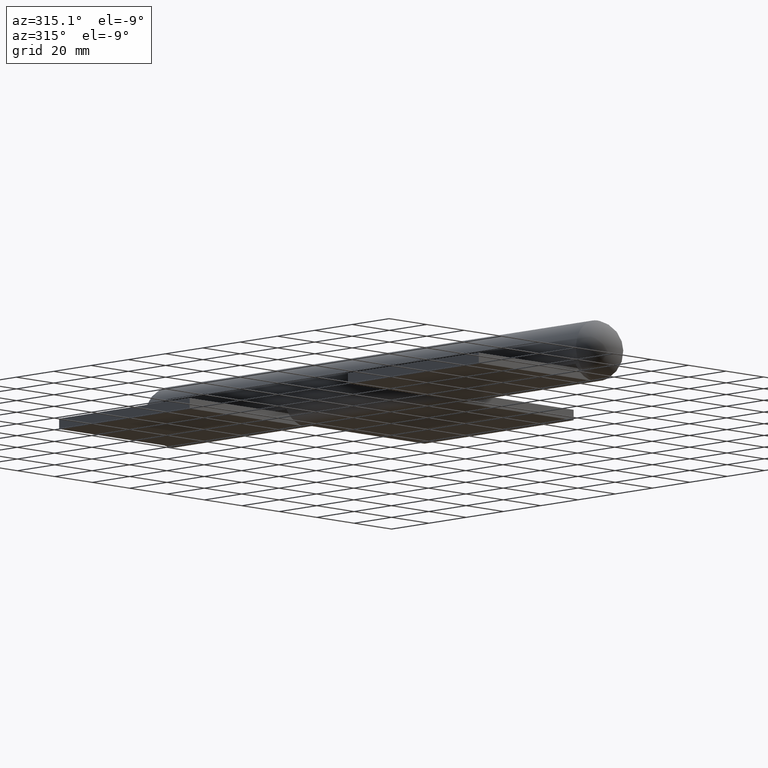
[diagram: clean part render]
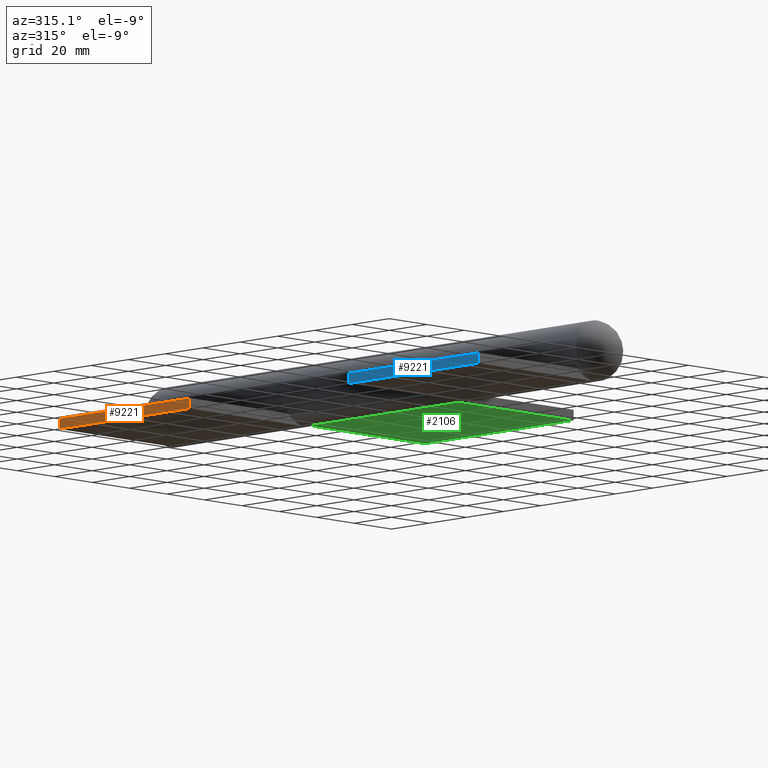
[diagram: same view with three faces highlighted in distinct colors, each labeled with its STEP entity id]
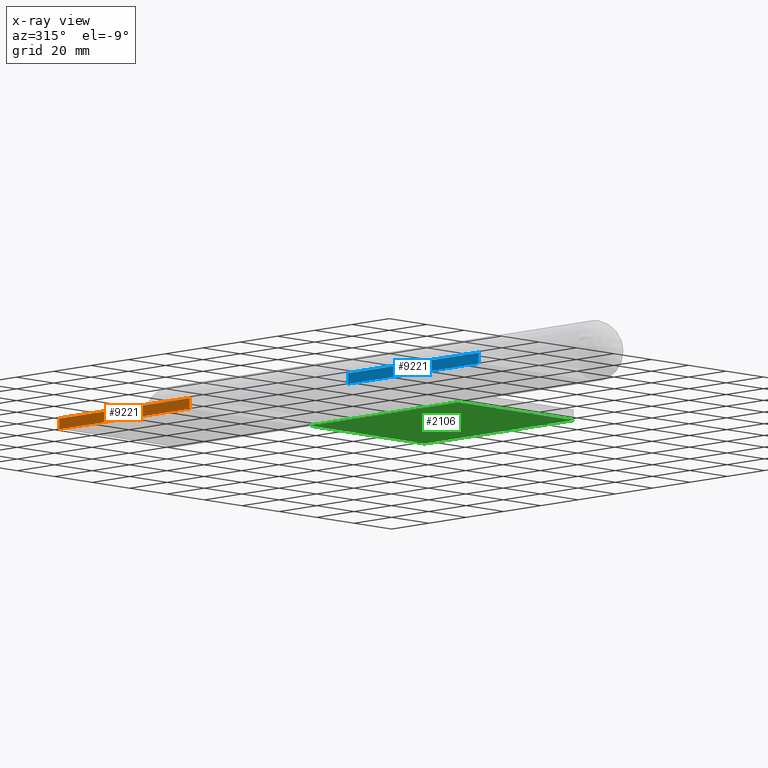
[diagram: x-ray of the same camera — body ghosted, the three highlighted faces saturated]
A machine part, auxiliary view with three faces highlighted in distinct colors.
The next image is the same camera in x-ray (body ghosted, the three faces saturated) — at least one of them is partly hidden behind the body in this view.
Their STEP definitions:

[orange] entity #9221 — the highlighted planar face has unit normal (1, 0, 0).
#17 = EDGE_CURVE ( 'NONE', #12016, #6122, #6877, .T. ) ;
#379 = LINE ( 'NONE', #4355, #547 ) ;
#547 = VECTOR ( 'NONE', #8517, 1000.000000000000000 ) ;
#614 = CARTESIAN_POINT ( 'NONE',  ( -7.500000000000000000, 35.00000000000000000, 61.49500000000000455 ) ) ;
#1254 = ORIENTED_EDGE ( 'NONE', *, *, #17, .T. ) ;
#1425 = CARTESIAN_POINT ( 'NONE',  ( -11.50000000000000000, -35.00000000000000000, 61.49500000000000455 ) ) ;
#1819 = CARTESIAN_POINT ( 'NONE',  ( -11.50000000000000000, 35.00000000000000000, 61.49500000000000455 ) ) ;
#1887 = ORIENTED_EDGE ( 'NONE', *, *, #3853, .F. ) ;
#1946 = EDGE_CURVE ( 'NONE', #2674, #8994, #10257, .T. ) ;
#2622 = ORIENTED_EDGE ( 'NONE', *, *, #1946, .F. ) ;
#2674 = VERTEX_POINT ( 'NONE', #8418 ) ;
#2874 = VECTOR ( 'NONE', #5631, 1000.000000000000000 ) ;
#2891 = CARTESIAN_POINT ( 'NONE',  ( -7.500000000000000000, 35.00000000000000000, 61.49500000000000455 ) ) ;
#2917 = AXIS2_PLACEMENT_3D ( 'NONE', #5262, #10264, #12160 ) ;
#2974 = CARTESIAN_POINT ( 'NONE',  ( -11.50000000000000000, -35.00000000000000000, 61.49500000000000455 ) ) ;
#3853 = EDGE_CURVE ( 'NONE', #8994, #6122, #9575, .T. ) ;
#4196 = ORIENTED_EDGE ( 'NONE', *, *, #4882, .T. ) ;
#4355 = CARTESIAN_POINT ( 'NONE',  ( -11.50000000000000000, 35.00000000000000000, 61.49500000000000455 ) ) ;
#4619 = EDGE_LOOP ( 'NONE', ( #1254, #1887, #2622, #4196 ) ) ;
#4882 = EDGE_CURVE ( 'NONE', #2674, #12016, #379, .T. ) ;
#5155 = VECTOR ( 'NONE', #10869, 1000.000000000000000 ) ;
#5262 = CARTESIAN_POINT ( 'NONE',  ( -11.50000000000000000, 35.00000000000000000, 61.49500000000000455 ) ) ;
#5631 = DIRECTION ( 'NONE',  ( -0.000000000000000000, -1.000000000000000000, -0.000000000000000000 ) ) ;
#5808 = CARTESIAN_POINT ( 'NONE',  ( -7.500000000000000000, -35.00000000000000000, 61.49500000000000455 ) ) ;
#6122 = VERTEX_POINT ( 'NONE', #5808 ) ;
#6877 = LINE ( 'NONE', #1425, #12290 ) ;
#7020 = FACE_OUTER_BOUND ( 'NONE', #4619, .T. ) ;
#7337 = PLANE ( 'NONE',  #2917 ) ;
#8418 = CARTESIAN_POINT ( 'NONE',  ( -11.50000000000000000, 35.00000000000000000, 61.49500000000000455 ) ) ;
#8517 = DIRECTION ( 'NONE',  ( -0.000000000000000000, -1.000000000000000000, -0.000000000000000000 ) ) ;
#8994 = VERTEX_POINT ( 'NONE', #2891 ) ;
#9221 = ADVANCED_FACE ( 'NONE', ( #7020 ), #7337, .F. ) ;
#9443 = DIRECTION ( 'NONE',  ( 1.000000000000000000, 0.000000000000000000, 0.000000000000000000 ) ) ;
#9575 = LINE ( 'NONE', #614, #2874 ) ;
#10257 = LINE ( 'NONE', #1819, #5155 ) ;
#10264 = DIRECTION ( 'NONE',  ( 0.000000000000000000, 0.000000000000000000, -1.000000000000000000 ) ) ;
#10869 = DIRECTION ( 'NONE',  ( 1.000000000000000000, 0.000000000000000000, 0.000000000000000000 ) ) ;
#12016 = VERTEX_POINT ( 'NONE', #2974 ) ;
#12160 = DIRECTION ( 'NONE',  ( -1.000000000000000000, 0.000000000000000000, -0.000000000000000000 ) ) ;
#12290 = VECTOR ( 'NONE', #9443, 1000.000000000000000 ) ;

[blue] entity #9221 — the highlighted planar face has unit normal (1, 0, -0).
#17 = EDGE_CURVE ( 'NONE', #12016, #6122, #6877, .T. ) ;
#379 = LINE ( 'NONE', #4355, #547 ) ;
#547 = VECTOR ( 'NONE', #8517, 1000.000000000000000 ) ;
#614 = CARTESIAN_POINT ( 'NONE',  ( -7.500000000000000000, 35.00000000000000000, 61.49500000000000455 ) ) ;
#1254 = ORIENTED_EDGE ( 'NONE', *, *, #17, .T. ) ;
#1425 = CARTESIAN_POINT ( 'NONE',  ( -11.50000000000000000, -35.00000000000000000, 61.49500000000000455 ) ) ;
#1819 = CARTESIAN_POINT ( 'NONE',  ( -11.50000000000000000, 35.00000000000000000, 61.49500000000000455 ) ) ;
#1887 = ORIENTED_EDGE ( 'NONE', *, *, #3853, .F. ) ;
#1946 = EDGE_CURVE ( 'NONE', #2674, #8994, #10257, .T. ) ;
#2622 = ORIENTED_EDGE ( 'NONE', *, *, #1946, .F. ) ;
#2674 = VERTEX_POINT ( 'NONE', #8418 ) ;
#2874 = VECTOR ( 'NONE', #5631, 1000.000000000000000 ) ;
#2891 = CARTESIAN_POINT ( 'NONE',  ( -7.500000000000000000, 35.00000000000000000, 61.49500000000000455 ) ) ;
#2917 = AXIS2_PLACEMENT_3D ( 'NONE', #5262, #10264, #12160 ) ;
#2974 = CARTESIAN_POINT ( 'NONE',  ( -11.50000000000000000, -35.00000000000000000, 61.49500000000000455 ) ) ;
#3853 = EDGE_CURVE ( 'NONE', #8994, #6122, #9575, .T. ) ;
#4196 = ORIENTED_EDGE ( 'NONE', *, *, #4882, .T. ) ;
#4355 = CARTESIAN_POINT ( 'NONE',  ( -11.50000000000000000, 35.00000000000000000, 61.49500000000000455 ) ) ;
#4619 = EDGE_LOOP ( 'NONE', ( #1254, #1887, #2622, #4196 ) ) ;
#4882 = EDGE_CURVE ( 'NONE', #2674, #12016, #379, .T. ) ;
#5155 = VECTOR ( 'NONE', #10869, 1000.000000000000000 ) ;
#5262 = CARTESIAN_POINT ( 'NONE',  ( -11.50000000000000000, 35.00000000000000000, 61.49500000000000455 ) ) ;
#5631 = DIRECTION ( 'NONE',  ( -0.000000000000000000, -1.000000000000000000, -0.000000000000000000 ) ) ;
#5808 = CARTESIAN_POINT ( 'NONE',  ( -7.500000000000000000, -35.00000000000000000, 61.49500000000000455 ) ) ;
#6122 = VERTEX_POINT ( 'NONE', #5808 ) ;
#6877 = LINE ( 'NONE', #1425, #12290 ) ;
#7020 = FACE_OUTER_BOUND ( 'NONE', #4619, .T. ) ;
#7337 = PLANE ( 'NONE',  #2917 ) ;
#8418 = CARTESIAN_POINT ( 'NONE',  ( -11.50000000000000000, 35.00000000000000000, 61.49500000000000455 ) ) ;
#8517 = DIRECTION ( 'NONE',  ( -0.000000000000000000, -1.000000000000000000, -0.000000000000000000 ) ) ;
#8994 = VERTEX_POINT ( 'NONE', #2891 ) ;
#9221 = ADVANCED_FACE ( 'NONE', ( #7020 ), #7337, .F. ) ;
#9443 = DIRECTION ( 'NONE',  ( 1.000000000000000000, 0.000000000000000000, 0.000000000000000000 ) ) ;
#9575 = LINE ( 'NONE', #614, #2874 ) ;
#10257 = LINE ( 'NONE', #1819, #5155 ) ;
#10264 = DIRECTION ( 'NONE',  ( 0.000000000000000000, 0.000000000000000000, -1.000000000000000000 ) ) ;
#10869 = DIRECTION ( 'NONE',  ( 1.000000000000000000, 0.000000000000000000, 0.000000000000000000 ) ) ;
#12016 = VERTEX_POINT ( 'NONE', #2974 ) ;
#12160 = DIRECTION ( 'NONE',  ( -1.000000000000000000, 0.000000000000000000, -0.000000000000000000 ) ) ;
#12290 = VECTOR ( 'NONE', #9443, 1000.000000000000000 ) ;

[green] entity #2106 — the highlighted planar face has unit normal (0, 0, 1).
#407 = EDGE_CURVE ( 'NONE', #9793, #3491, #10888, .T. ) ;
#639 = EDGE_LOOP ( 'NONE', ( #1102, #6010, #8592, #1528 ) ) ;
#1102 = ORIENTED_EDGE ( 'NONE', *, *, #407, .T. ) ;
#1528 = ORIENTED_EDGE ( 'NONE', *, *, #12686, .T. ) ;
#1810 = EDGE_CURVE ( 'NONE', #10473, #12209, #10724, .T. ) ;
#2098 = CARTESIAN_POINT ( 'NONE',  ( -11.50000000000000000, 40.00000000000000000, 61.49500000000000455 ) ) ;
#2106 = ADVANCED_FACE ( 'NONE', ( #9488 ), #3099, .F. ) ;
#2263 = CARTESIAN_POINT ( 'NONE',  ( -11.49999999999999822, 40.00000000000000000, 2.112515728529185250E-15 ) ) ;
#2666 = CARTESIAN_POINT ( 'NONE',  ( -11.50000000000000000, 40.00000000000000000, 61.49500000000000455 ) ) ;
#2860 = LINE ( 'NONE', #2666, #12165 ) ;
#3099 = PLANE ( 'NONE',  #5325 ) ;
#3363 = DIRECTION ( 'NONE',  ( -0.000000000000000000, -0.000000000000000000, 1.000000000000000000 ) ) ;
#3397 = DIRECTION ( 'NONE',  ( -0.000000000000000000, -1.000000000000000000, -0.000000000000000000 ) ) ;
#3491 = VERTEX_POINT ( 'NONE', #8343 ) ;
#3573 = CARTESIAN_POINT ( 'NONE',  ( -11.50000000000000000, -40.00000000000000000, 61.49500000000000455 ) ) ;
#4498 = DIRECTION ( 'NONE',  ( -0.000000000000000000, -0.000000000000000000, 1.000000000000000000 ) ) ;
#4528 = DIRECTION ( 'NONE',  ( -0.000000000000000000, -1.000000000000000000, -0.000000000000000000 ) ) ;
#4947 = CARTESIAN_POINT ( 'NONE',  ( -11.49999999999999822, -40.00000000000000000, 2.112515728529185250E-15 ) ) ;
#5027 = EDGE_CURVE ( 'NONE', #12209, #3491, #2860, .T. ) ;
#5097 = CARTESIAN_POINT ( 'NONE',  ( -11.50000000000000000, 40.00000000000000000, 61.49500000000000455 ) ) ;
#5275 = VECTOR ( 'NONE', #3397, 1000.000000000000000 ) ;
#5325 = AXIS2_PLACEMENT_3D ( 'NONE', #5097, #11034, #12034 ) ;
#5740 = LINE ( 'NONE', #8439, #5275 ) ;
#6010 = ORIENTED_EDGE ( 'NONE', *, *, #5027, .F. ) ;
#7642 = CARTESIAN_POINT ( 'NONE',  ( -11.50000000000000000, 40.00000000000000000, 61.49500000000000455 ) ) ;
#8111 = VECTOR ( 'NONE', #3363, 1000.000000000000000 ) ;
#8343 = CARTESIAN_POINT ( 'NONE',  ( -11.50000000000000000, -40.00000000000000000, 61.49500000000000455 ) ) ;
#8439 = CARTESIAN_POINT ( 'NONE',  ( -11.49999999999999822, 40.00000000000000000, 2.112515728529185250E-15 ) ) ;
#8592 = ORIENTED_EDGE ( 'NONE', *, *, #1810, .F. ) ;
#9488 = FACE_OUTER_BOUND ( 'NONE', #639, .T. ) ;
#9793 = VERTEX_POINT ( 'NONE', #4947 ) ;
#10473 = VERTEX_POINT ( 'NONE', #2263 ) ;
#10724 = LINE ( 'NONE', #2098, #8111 ) ;
#10888 = LINE ( 'NONE', #3573, #11519 ) ;
#11034 = DIRECTION ( 'NONE',  ( 1.000000000000000000, -0.000000000000000000, 0.000000000000000000 ) ) ;
#11519 = VECTOR ( 'NONE', #4498, 1000.000000000000000 ) ;
#12034 = DIRECTION ( 'NONE',  ( 0.000000000000000000, 0.000000000000000000, -1.000000000000000000 ) ) ;
#12165 = VECTOR ( 'NONE', #4528, 1000.000000000000000 ) ;
#12209 = VERTEX_POINT ( 'NONE', #7642 ) ;
#12686 = EDGE_CURVE ( 'NONE', #10473, #9793, #5740, .T. ) ;